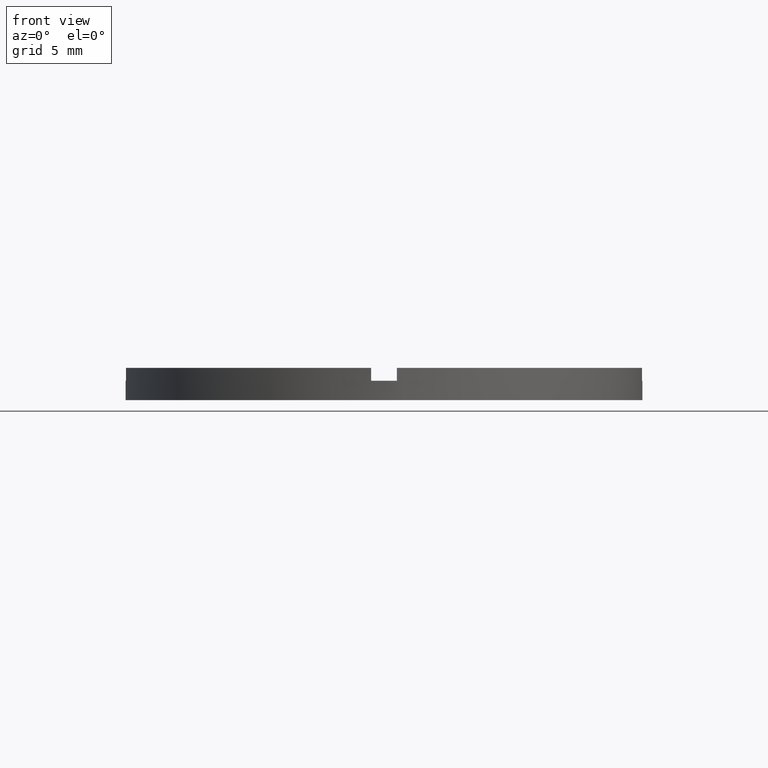
[diagram: clean part render]
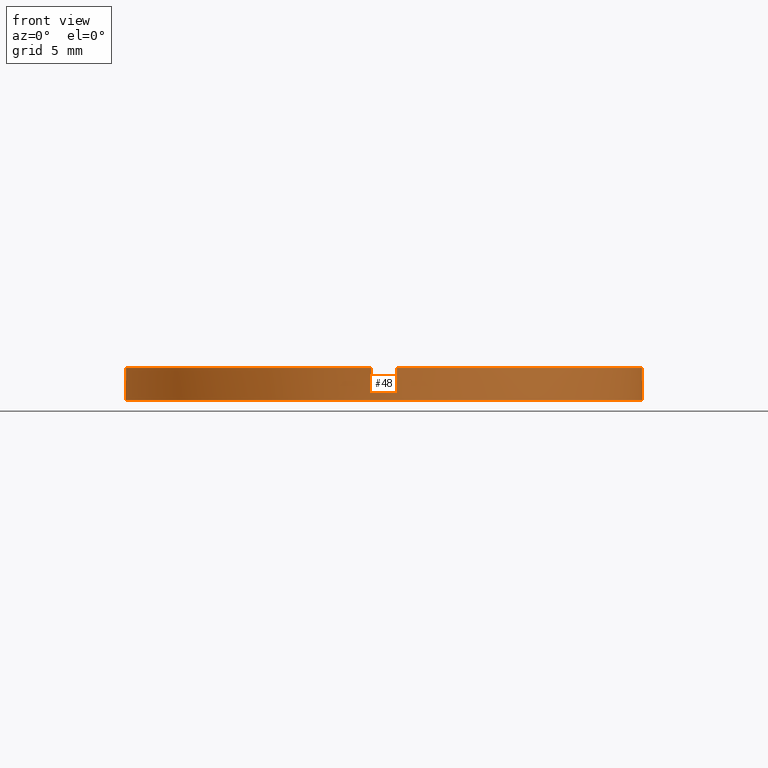
[diagram: same view with one face highlighted and labeled with its STEP entity id]
A machine part, front view. The second image highlights one B-rep face of the part: STEP entity #48.
In plain terms, the highlighted cylindrical surface (partial cylindrical patch) has radius 20 mm, axis along (-0, -0, -1).
Its self-contained STEP definition (entity closure, byte-faithful):
#12 = CARTESIAN_POINT ( 'NONE',  ( 19.97498435543817408, -1.000000000000156986, 2.500000000000000000 ) ) ;
#15 = ORIENTED_EDGE ( 'NONE', *, *, #510, .T. ) ;
#22 = EDGE_LOOP ( 'NONE', ( #389, #550, #119, #274, #205, #46, #640, #208, #271, #748, #15, #320 ) ) ;
#30 = VERTEX_POINT ( 'NONE', #351 ) ;
#46 = ORIENTED_EDGE ( 'NONE', *, *, #193, .F. ) ;
#48 = ADVANCED_FACE ( 'NONE', ( #621 ), #385, .T. ) ;
#51 = DIRECTION ( 'NONE',  ( 1.000000000000000000, 0.000000000000000000, 0.000000000000000000 ) ) ;
#57 = CARTESIAN_POINT ( 'NONE',  ( 0.000000000000000000, 0.000000000000000000, 1.500000000000000000 ) ) ;
#59 = AXIS2_PLACEMENT_3D ( 'NONE', #591, #442, #121 ) ;
#60 = CARTESIAN_POINT ( 'NONE',  ( 0.9999999999998395728, -19.97498435543818829, 2.500000000000000000 ) ) ;
#63 = CARTESIAN_POINT ( 'NONE',  ( 0.9999999999998395728, -19.97498435543818829, 1.500000000000000000 ) ) ;
#65 = DIRECTION ( 'NONE',  ( -1.000000000000000000, 0.000000000000000000, 0.000000000000000000 ) ) ;
#66 = CARTESIAN_POINT ( 'NONE',  ( 20.00000000000000000, 2.449293598294706513E-15, 1.500000000000000000 ) ) ;
#68 = EDGE_CURVE ( 'NONE', #491, #502, #635, .T. ) ;
#70 = CARTESIAN_POINT ( 'NONE',  ( 20.00000000000000000, 2.449293598294706513E-15, 2.500000000000000000 ) ) ;
#72 = DIRECTION ( 'NONE',  ( 0.000000000000000000, 0.000000000000000000, 1.000000000000000000 ) ) ;
#75 = AXIS2_PLACEMENT_3D ( 'NONE', #57, #232, #775 ) ;
#78 = AXIS2_PLACEMENT_3D ( 'NONE', #538, #507, #65 ) ;
#80 = CARTESIAN_POINT ( 'NONE',  ( 0.000000000000000000, 0.000000000000000000, 2.500000000000000000 ) ) ;
#99 = CIRCLE ( 'NONE', #75, 20.00000000000000000 ) ;
#100 = CARTESIAN_POINT ( 'NONE',  ( 0.9999999999998395728, -19.97498435543818829, 2.500000000000000000 ) ) ;
#119 = ORIENTED_EDGE ( 'NONE', *, *, #122, .T. ) ;
#120 = AXIS2_PLACEMENT_3D ( 'NONE', #594, #539, #360 ) ;
#121 = DIRECTION ( 'NONE',  ( 1.000000000000000000, 0.000000000000000000, 0.000000000000000000 ) ) ;
#122 = EDGE_CURVE ( 'NONE', #458, #707, #615, .T. ) ;
#133 = DIRECTION ( 'NONE',  ( -0.000000000000000000, -0.000000000000000000, -1.000000000000000000 ) ) ;
#137 = LINE ( 'NONE', #773, #685 ) ;
#142 = EDGE_CURVE ( 'NONE', #458, #742, #608, .T. ) ;
#145 = CIRCLE ( 'NONE', #437, 20.00000000000000000 ) ;
#166 = EDGE_CURVE ( 'NONE', #196, #277, #365, .T. ) ;
#168 = LINE ( 'NONE', #505, #443 ) ;
#180 = DIRECTION ( 'NONE',  ( -0.000000000000000000, -0.000000000000000000, -1.000000000000000000 ) ) ;
#186 = VERTEX_POINT ( 'NONE', #337 ) ;
#193 = EDGE_CURVE ( 'NONE', #186, #277, #99, .T. ) ;
#196 = VERTEX_POINT ( 'NONE', #100 ) ;
#199 = CARTESIAN_POINT ( 'NONE',  ( 19.97498435543817408, -1.000000000000156986, 1.500000000000000000 ) ) ;
#205 = ORIENTED_EDGE ( 'NONE', *, *, #166, .T. ) ;
#208 = ORIENTED_EDGE ( 'NONE', *, *, #400, .F. ) ;
#228 = CARTESIAN_POINT ( 'NONE',  ( -1.000000000000160538, -19.97498435543817052, 2.500000000000000000 ) ) ;
#230 = DIRECTION ( 'NONE',  ( 0.000000000000000000, 0.000000000000000000, 1.000000000000000000 ) ) ;
#232 = DIRECTION ( 'NONE',  ( -0.000000000000000000, 0.000000000000000000, 1.000000000000000000 ) ) ;
#264 = DIRECTION ( 'NONE',  ( 0.000000000000000000, 0.000000000000000000, 1.000000000000000000 ) ) ;
#271 = ORIENTED_EDGE ( 'NONE', *, *, #68, .T. ) ;
#274 = ORIENTED_EDGE ( 'NONE', *, *, #572, .F. ) ;
#277 = VERTEX_POINT ( 'NONE', #63 ) ;
#279 = DIRECTION ( 'NONE',  ( -0.000000000000000000, -0.000000000000000000, -1.000000000000000000 ) ) ;
#288 = AXIS2_PLACEMENT_3D ( 'NONE', #398, #478, #51 ) ;
#291 = VERTEX_POINT ( 'NONE', #228 ) ;
#320 = ORIENTED_EDGE ( 'NONE', *, *, #486, .T. ) ;
#336 = DIRECTION ( 'NONE',  ( -0.000000000000000000, -0.000000000000000000, -1.000000000000000000 ) ) ;
#337 = CARTESIAN_POINT ( 'NONE',  ( -1.000000000000160538, -19.97498435543817052, 1.500000000000000000 ) ) ;
#351 = CARTESIAN_POINT ( 'NONE',  ( -20.00000000000000000, 0.000000000000000000, 0.000000000000000000 ) ) ;
#360 = DIRECTION ( 'NONE',  ( 1.000000000000000000, 0.000000000000000000, 0.000000000000000000 ) ) ;
#364 = CARTESIAN_POINT ( 'NONE',  ( -19.97498435543818118, -1.000000000000025757, 1.500000000000000000 ) ) ;
#365 = LINE ( 'NONE', #60, #617 ) ;
#385 = CYLINDRICAL_SURFACE ( 'NONE', #78, 20.00000000000000000 ) ;
#389 = ORIENTED_EDGE ( 'NONE', *, *, #760, .F. ) ;
#393 = DIRECTION ( 'NONE',  ( 0.000000000000000000, 0.000000000000000000, 1.000000000000000000 ) ) ;
#398 = CARTESIAN_POINT ( 'NONE',  ( 0.000000000000000000, 0.000000000000000000, 2.500000000000000000 ) ) ;
#400 = EDGE_CURVE ( 'NONE', #491, #291, #410, .T. ) ;
#410 = CIRCLE ( 'NONE', #288, 20.00000000000000000 ) ;
#437 = AXIS2_PLACEMENT_3D ( 'NONE', #762, #393, #630 ) ;
#442 = DIRECTION ( 'NONE',  ( 0.000000000000000000, 0.000000000000000000, 1.000000000000000000 ) ) ;
#443 = VECTOR ( 'NONE', #230, 1000.000000000000000 ) ;
#448 = LINE ( 'NONE', #70, #696 ) ;
#457 = VERTEX_POINT ( 'NONE', #513 ) ;
#458 = VERTEX_POINT ( 'NONE', #199 ) ;
#478 = DIRECTION ( 'NONE',  ( 0.000000000000000000, 0.000000000000000000, 1.000000000000000000 ) ) ;
#486 = EDGE_CURVE ( 'NONE', #30, #457, #145, .T. ) ;
#491 = VERTEX_POINT ( 'NONE', #699 ) ;
#502 = VERTEX_POINT ( 'NONE', #364 ) ;
#505 = CARTESIAN_POINT ( 'NONE',  ( -1.000000000000160538, -19.97498435543817052, 2.500000000000000000 ) ) ;
#507 = DIRECTION ( 'NONE',  ( -0.000000000000000000, -0.000000000000000000, -1.000000000000000000 ) ) ;
#510 = EDGE_CURVE ( 'NONE', #730, #30, #137, .T. ) ;
#513 = CARTESIAN_POINT ( 'NONE',  ( 20.00000000000000000, 2.449293598294706513E-15, 0.000000000000000000 ) ) ;
#534 = CARTESIAN_POINT ( 'NONE',  ( 19.97498435543817408, -1.000000000000156986, 2.500000000000000000 ) ) ;
#538 = CARTESIAN_POINT ( 'NONE',  ( 0.000000000000000000, 0.000000000000000000, 2.500000000000000000 ) ) ;
#539 = DIRECTION ( 'NONE',  ( 0.000000000000000000, 0.000000000000000000, 1.000000000000000000 ) ) ;
#550 = ORIENTED_EDGE ( 'NONE', *, *, #142, .F. ) ;
#572 = EDGE_CURVE ( 'NONE', #196, #707, #667, .T. ) ;
#586 = CARTESIAN_POINT ( 'NONE',  ( -20.00000000000000000, 0.000000000000000000, 1.500000000000000000 ) ) ;
#591 = CARTESIAN_POINT ( 'NONE',  ( 0.000000000000000000, 0.000000000000000000, 1.500000000000000000 ) ) ;
#594 = CARTESIAN_POINT ( 'NONE',  ( 0.000000000000000000, 0.000000000000000000, 1.500000000000000000 ) ) ;
#606 = VECTOR ( 'NONE', #133, 1000.000000000000000 ) ;
#608 = CIRCLE ( 'NONE', #120, 20.00000000000000000 ) ;
#610 = CARTESIAN_POINT ( 'NONE',  ( -19.97498435543818118, -1.000000000000025757, 2.500000000000000000 ) ) ;
#615 = LINE ( 'NONE', #12, #625 ) ;
#617 = VECTOR ( 'NONE', #279, 1000.000000000000000 ) ;
#621 = FACE_OUTER_BOUND ( 'NONE', #22, .T. ) ;
#625 = VECTOR ( 'NONE', #72, 1000.000000000000000 ) ;
#630 = DIRECTION ( 'NONE',  ( 1.000000000000000000, 0.000000000000000000, 0.000000000000000000 ) ) ;
#635 = LINE ( 'NONE', #610, #606 ) ;
#640 = ORIENTED_EDGE ( 'NONE', *, *, #705, .T. ) ;
#667 = CIRCLE ( 'NONE', #698, 20.00000000000000000 ) ;
#685 = VECTOR ( 'NONE', #336, 1000.000000000000000 ) ;
#690 = CIRCLE ( 'NONE', #59, 20.00000000000000000 ) ;
#696 = VECTOR ( 'NONE', #180, 1000.000000000000000 ) ;
#698 = AXIS2_PLACEMENT_3D ( 'NONE', #80, #264, #702 ) ;
#699 = CARTESIAN_POINT ( 'NONE',  ( -19.97498435543818118, -1.000000000000025757, 2.500000000000000000 ) ) ;
#702 = DIRECTION ( 'NONE',  ( 1.000000000000000000, 0.000000000000000000, 0.000000000000000000 ) ) ;
#705 = EDGE_CURVE ( 'NONE', #186, #291, #168, .T. ) ;
#707 = VERTEX_POINT ( 'NONE', #534 ) ;
#720 = EDGE_CURVE ( 'NONE', #730, #502, #690, .T. ) ;
#730 = VERTEX_POINT ( 'NONE', #586 ) ;
#742 = VERTEX_POINT ( 'NONE', #66 ) ;
#748 = ORIENTED_EDGE ( 'NONE', *, *, #720, .F. ) ;
#760 = EDGE_CURVE ( 'NONE', #742, #457, #448, .T. ) ;
#762 = CARTESIAN_POINT ( 'NONE',  ( 0.000000000000000000, 0.000000000000000000, 0.000000000000000000 ) ) ;
#773 = CARTESIAN_POINT ( 'NONE',  ( -20.00000000000000000, 0.000000000000000000, 2.500000000000000000 ) ) ;
#775 = DIRECTION ( 'NONE',  ( 1.000000000000000000, 0.000000000000000000, 0.000000000000000000 ) ) ;